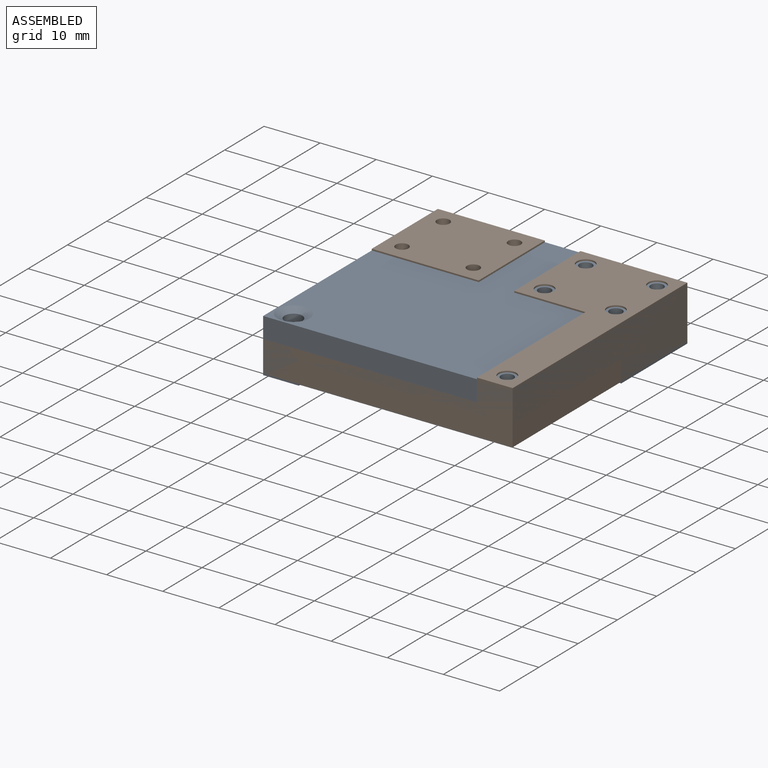
[diagram: assembled view]
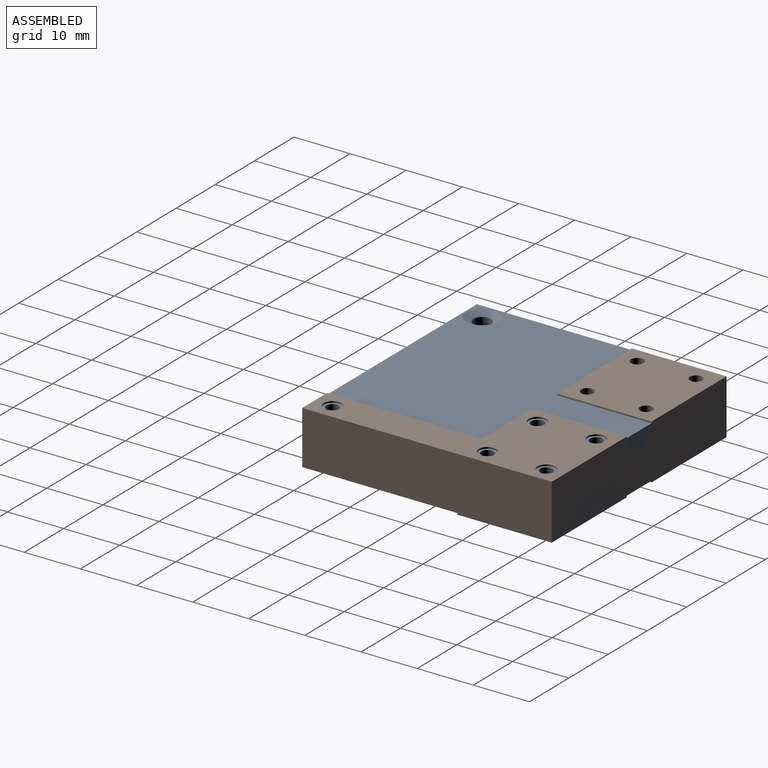
[diagram: assembled view, second angle]
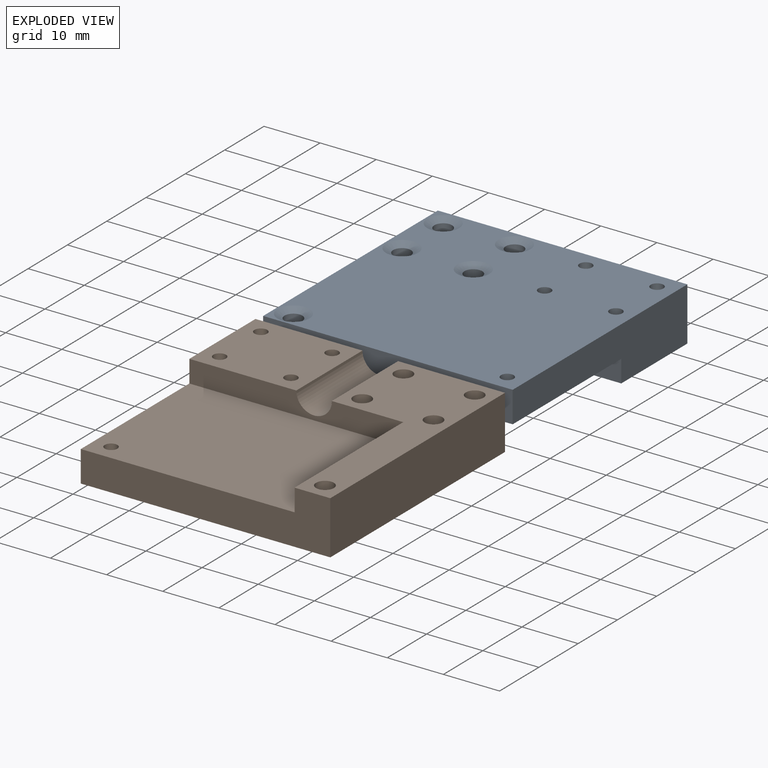
[diagram: exploded view]
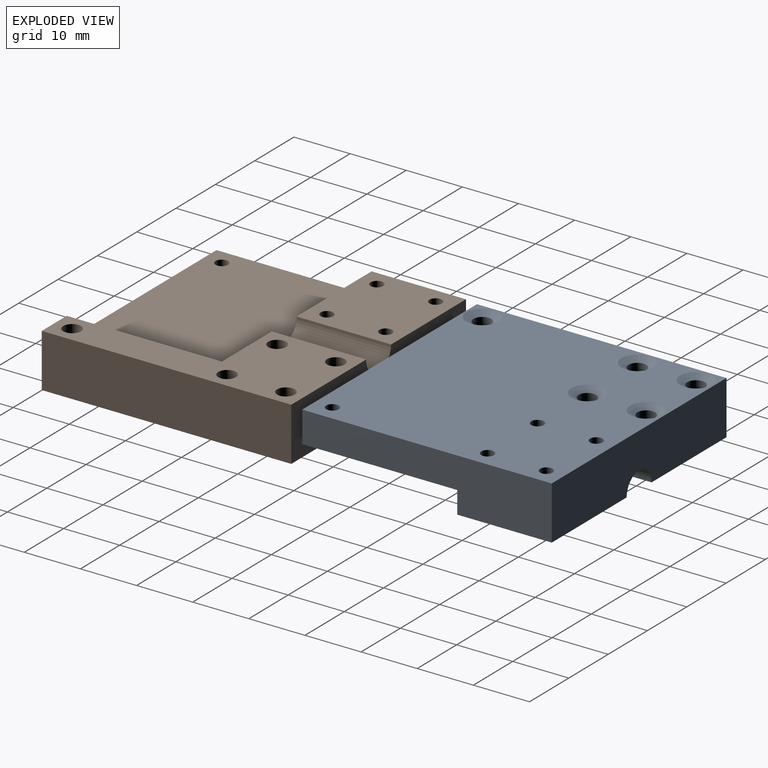
[diagram: exploded view, second angle]
ASSEMBLY  parts=2 mates=2
PART A: 26 faces, bbox 44.5x44.5x9.5 mm
  f0: plane 44.45x19.05mm, normal (0,0,1), area 456.3mm2, adj f1,f3,f4,f7,f8,f10,f11,f12
  f1: plane 44.45x9.53mm, normal (0,1,0), area 407.6mm2, adj f0,f2,f4,f6,f9,f20
  f2: plane 44.45x9.53mm, normal (-1,0,0), area 313.7mm2, adj f1,f3,f5,f6,f7,f9
  f3: plane 44.45x9.53mm, normal (0,-1,0), area 272.2mm2, adj f0,f2,f4,f5,f6,f8
  f4: plane 44.45x9.53mm, normal (1,0,0), area 423.4mm2, adj f0,f1,f3,f6
  f5: plane 38.1x27.63mm, normal (0,0,1), area 1048.5mm2, adj f2,f3,f7,f8,f19
  f6: plane 44.45x44.45mm, normal (0,0,-1), area 1827.5mm2, adj f1,f2,f3,f4,f14,f16,f17,f18
  f7: plane 38.1x3.97mm, normal (0,-1,0), area 135.4mm2, adj f0,f2,f5,f8,f9,f20
  f8: plane 27.63x3.97mm, normal (-1,0,0), area 109.6mm2, adj f0,f3,f5,f7
  f9: plane 19.05x16.83mm, normal (0,0,1), area 304.5mm2, adj f1,f2,f7,f14,f16,f17,f18,f20
  f10: cylinder r=1.59mm len=8.79mm, axis (0,0,1), area 87.7mm2, adj f0,f24
  f11: cylinder r=1.59mm len=8.79mm, axis (0,0,1), area 87.7mm2, adj f0,f21
  f12: cylinder r=1.59mm len=8.79mm, axis (0,0,1), area 87.7mm2, adj f0,f22
  f13: cylinder r=1.59mm len=8.79mm, axis (0,0,1), area 87.7mm2, adj f0,f25
  f14: cylinder r=1.13mm len=9.53mm, axis (0,0,1), area 67.6mm2, adj f6,f9
  f15: cylinder r=1.59mm len=8.79mm, axis (0,0,1), area 87.7mm2, adj f0,f23
  f16: cylinder r=1.13mm len=9.53mm, axis (0,0,1), area 67.6mm2, adj f6,f9
  f17: cylinder r=1.13mm len=9.53mm, axis (0,0,1), area 67.6mm2, adj f6,f9
  f18: cylinder r=1.13mm len=9.53mm, axis (0,0,1), area 67.6mm2, adj f6,f9
  f19: cylinder r=1.13mm len=5.56mm, axis (0,0,1), area 39.5mm2, adj f5,f6
  f20: cylinder r=3.17mm len=16.83mm, axis (0,1,0), area 167.8mm2, adj f0,f1,f7,f9
  f21: cone r=2.86mm half-angle=60deg, axis (0,0,-1), area 20.5mm2, adj f6,f11
  f22: cone r=2.86mm half-angle=60deg, axis (0,0,-1), area 20.5mm2, adj f6,f12
  f23: cone r=2.86mm half-angle=60deg, axis (0,0,-1), area 20.5mm2, adj f6,f15
  f24: cone r=2.86mm half-angle=60deg, axis (0,0,-1), area 20.5mm2, adj f6,f10
  f25: cone r=2.86mm half-angle=60deg, axis (0,0,-1), area 20.5mm2, adj f6,f13
PART B: same geometry as A
PLACE A rot(axis=(0,-1,0),180deg) t=(-7.41,0.1,21.04)mm
PLACE B t=(-7.41,0.1,11.78)mm
MATE planar B.f1 <-> A.f1  axis (0,1,0) through (-7.41,22.32,16.41)mm
MATE planar A.f2 <-> B.f4  axis (1,0,0) through (14.81,3.04,17.25)mm
